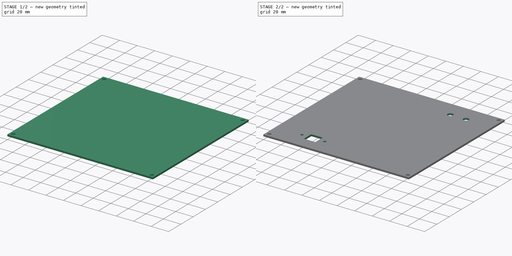
[diagram: build sequence overview — one tinted view per stage of 2, left to right]
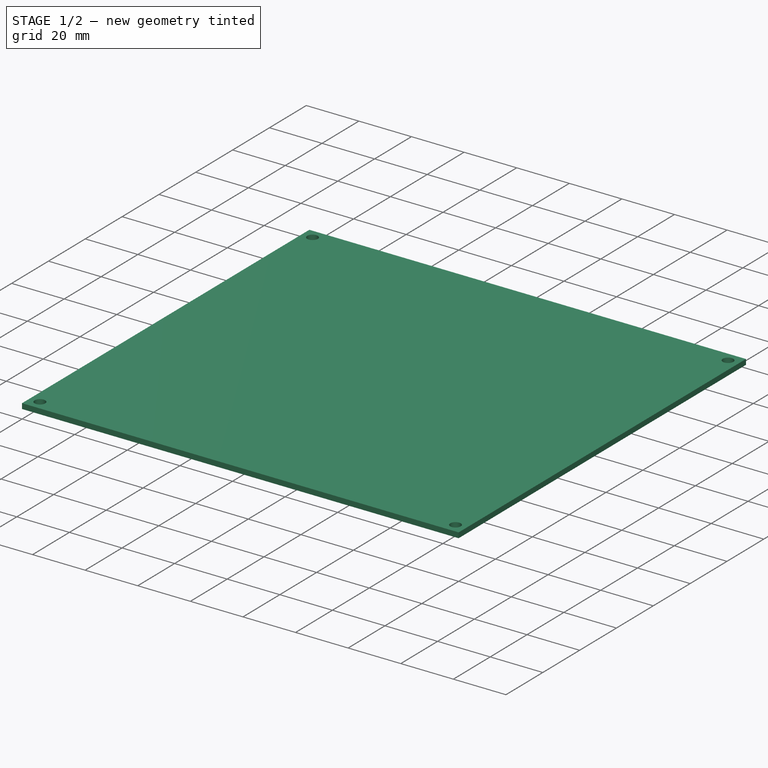
[diagram: stage 1 of 2 — iso view after this stage's code; geometry added in this stage tinted green]
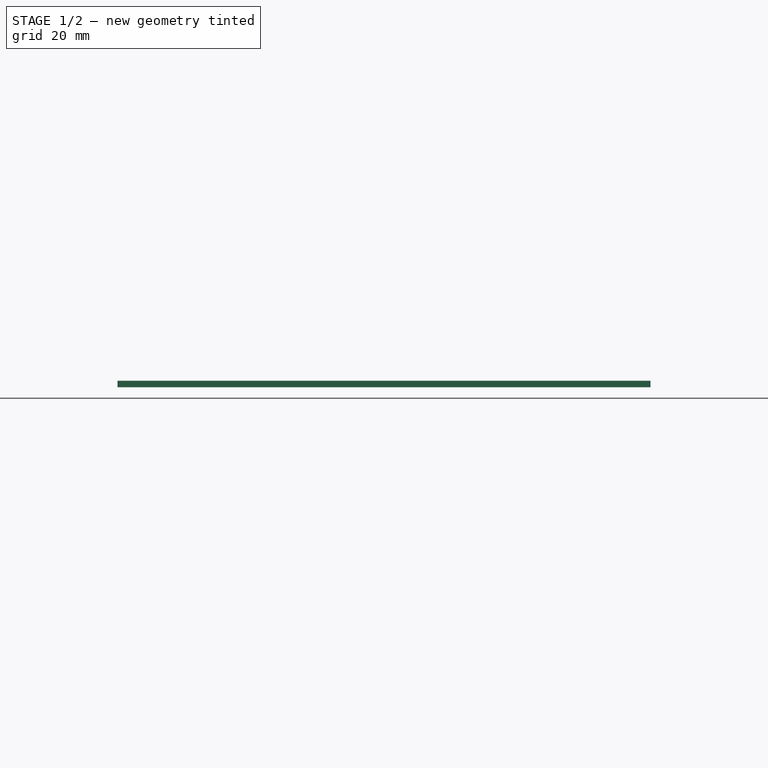
[diagram: stage 1 of 2 — front view after this stage's code; geometry added in this stage tinted green]
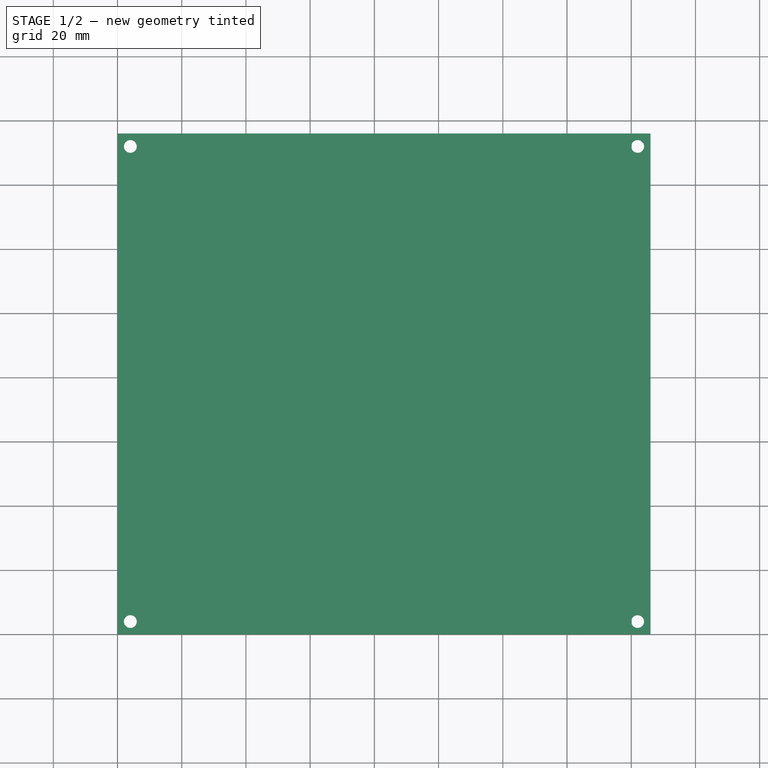
[diagram: stage 1 of 2 — top view after this stage's code; geometry added in this stage tinted green]
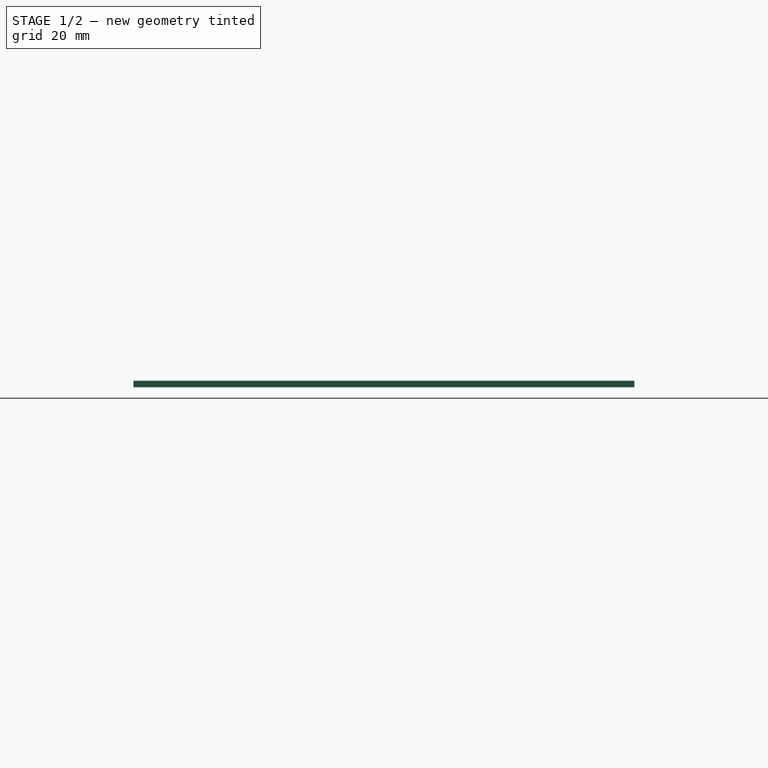
[diagram: stage 1 of 2 — right view after this stage's code; geometry added in this stage tinted green]
FCSTD DOCUMENT  (FreeCAD 0.19R24291 (Git))
Label: CaseBack
License: All rights reserved
LicenseURL: http://en.wikipedia.org/wiki/All_rights_reserved
objects: Sketcher::SketchObject×4, PartDesign::Pocket×3, PartDesign::Pad×1, PartDesign::Body×1, Spreadsheet::Sheet×1
note: 13 computed .brp shape members not serialized (recipe doc carries the construction recipe); baked Part::Feature solids carry a one-line shape summary decoded from their .brp

FEATURE [Sketcher::SketchObject] Sketch  label="Rect"
  FullyConstrained = true
  MapMode = 5
  Support = -> [XY_Plane]
  expr: Constraints[10] = <<params>>.backwidth
  expr: Constraints[9] = <<params>>.backheight
  sketch-geometry (4):
    g0: LineSegment StartX=0 StartY=0 StartZ=0 EndX=166 EndY=0 EndZ=0
    g1: LineSegment StartX=166 StartY=0 StartZ=0 EndX=166 EndY=156 EndZ=0
    g2: LineSegment StartX=166 StartY=156 StartZ=0 EndX=0 EndY=156 EndZ=0
    g3: LineSegment StartX=0 StartY=156 StartZ=0 EndX=0 EndY=0 EndZ=0
  constraints (11):
    c: Coincident(g0,g1)
    c: Coincident(g1,g2)
    c: Coincident(g2,g3)
    c: Coincident(g3,g0)
    c: Horizontal(g0)
    c: Horizontal(g2)
    c: Vertical(g1)
    c: Vertical(g3)
    c: Coincident(g0,g-1)
    c: DistanceY(g3,g3) = 156
    c: DistanceX(g0,g0) = 166
FEATURE [PartDesign::Pad] Pad  label="Base"
  AllowMultiFace = false
  Direction = (1,1,1)
  Length = 2
  Length2 = 100
  Profile = -> Sketch
  Type = 0
  expr: Length = <<params>>.basethickness
FEATURE [Sketcher::SketchObject] Sketch001
  ExternalGeometry = -> [Pad]
  FullyConstrained = true
  MapMode = 5
  Placement = pos=(0,0,2) rot=(0,0,1;0rad)
  Support = -> [Pad]
  expr: Constraints[14] = <<params>>.corneroffset
  expr: Constraints[17] = <<params>>.corneroffset
  expr: Constraints[3] = <<params>>.cornerradius
  expr: Constraints[16] = <<params>>.corneroffset
  expr: Constraints[15] = <<params>>.corneroffset
  sketch-geometry (7):
    g0: Circle CenterX=4 CenterY=152 CenterZ=0 NormalX=0 NormalY=0 NormalZ=1 AngleXU=0 Radius=2
    g1: Circle CenterX=162 CenterY=152 CenterZ=0 NormalX=0 NormalY=0 NormalZ=1 AngleXU=0 Radius=2
    g2: Circle CenterX=4 CenterY=4 CenterZ=0 NormalX=0 NormalY=0 NormalZ=1 AngleXU=0 Radius=2
    g3: Circle CenterX=162 CenterY=4 CenterZ=0 NormalX=0 NormalY=0 NormalZ=1 AngleXU=0 Radius=2
    g4: LineSegment StartX=4 StartY=152 StartZ=0 EndX=162 EndY=152 EndZ=0
    g5: LineSegment StartX=4 StartY=4 StartZ=0 EndX=162 EndY=4 EndZ=0
    g6: LineSegment StartX=4 StartY=4 StartZ=0 EndX=4 EndY=152 EndZ=0
  constraints (18):
    c: Equal(g0,g1)
    c: Equal(g1,g2)
    c: Equal(g2,g3)
    c: Radius(g0) = 2
    c: Coincident(g4,g0)
    c: Coincident(g4,g1)
    c: Horizontal(g4)
    c: Coincident(g5,g2)
    c: Coincident(g5,g3)
    c: Coincident(g6,g2)
    c: Coincident(g6,g0)
    c: Vertical(g6)
    c: Horizontal(g5)
    c: Equal(g4,g5)
    c: DistanceX(g-3,g0) = 4
    c: DistanceY(g0,g-3) = 4
    c: DistanceX(g1,g-4) = 4
    c: DistanceY(g-1,g2) = 4
FEATURE [PartDesign::Pocket] Pocket  label="CornerHoles"
  AllowMultiFace = false
  BaseFeature = -> Pad
  Length = 5
  Length2 = 100
  Profile = -> Sketch001
  Type = 1
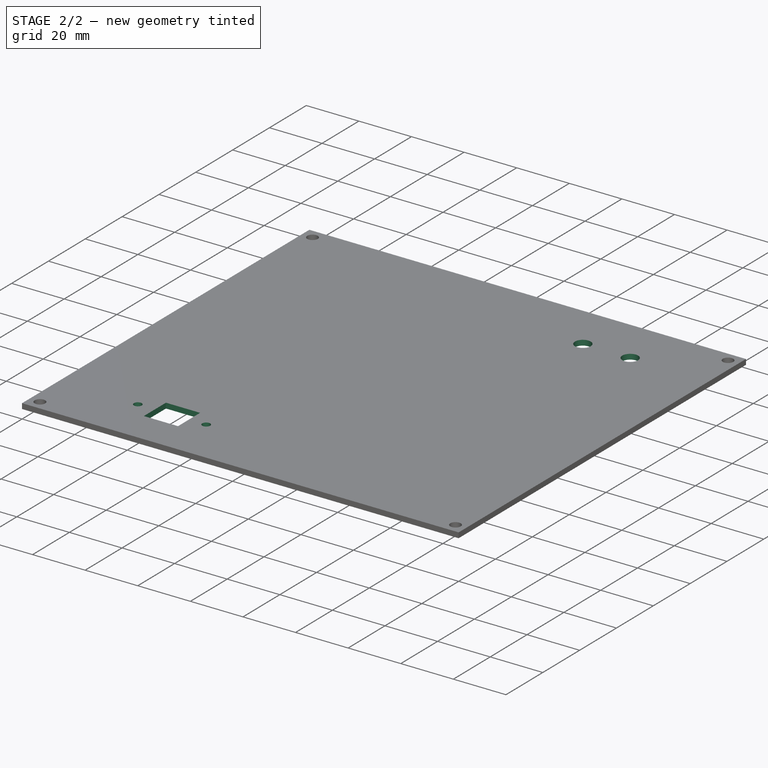
[diagram: stage 2 of 2 — iso view after this stage's code; geometry added in this stage tinted green]
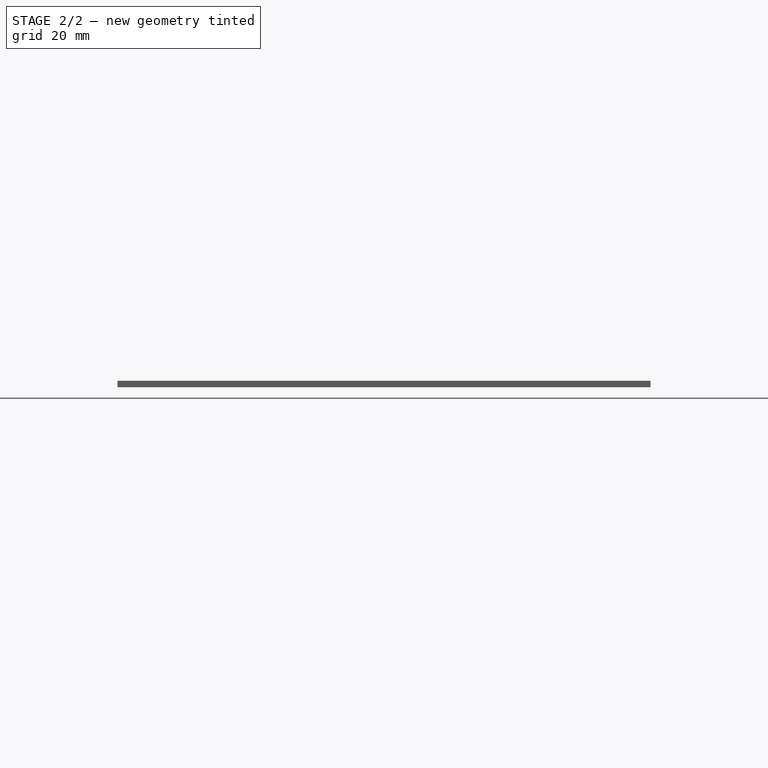
[diagram: stage 2 of 2 — front view after this stage's code; geometry added in this stage tinted green]
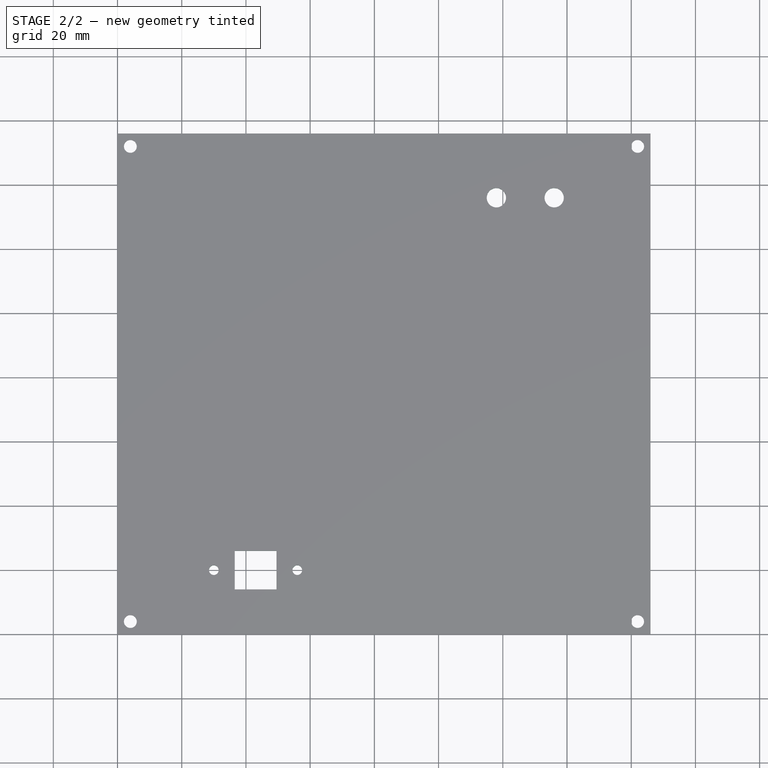
[diagram: stage 2 of 2 — top view after this stage's code; geometry added in this stage tinted green]
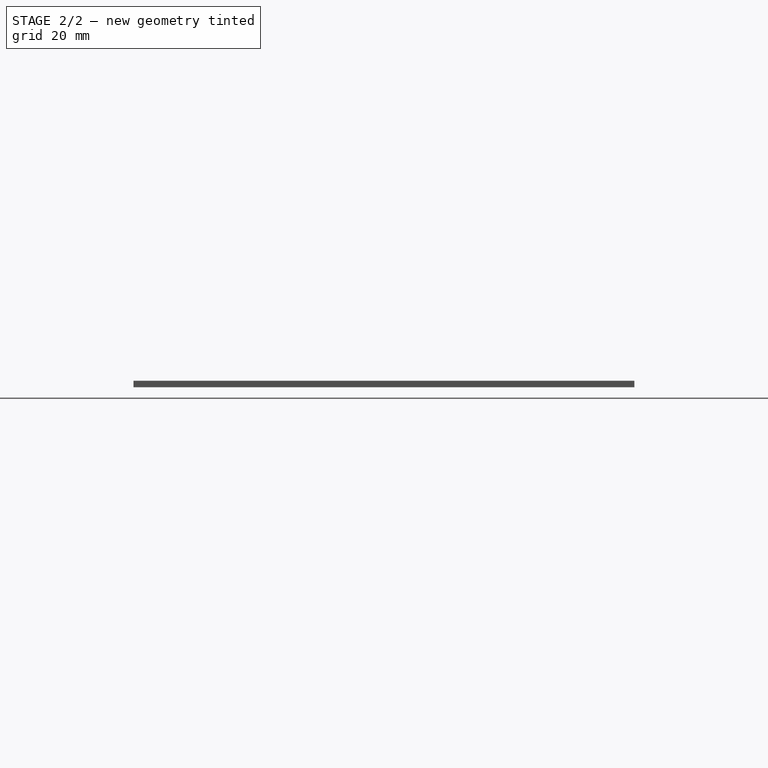
[diagram: stage 2 of 2 — right view after this stage's code; geometry added in this stage tinted green]
FEATURE [Sketcher::SketchObject] Sketch002
  ExternalGeometry = -> [Pocket]
  FullyConstrained = true
  MapMode = 5
  Placement = pos=(0,0,2) rot=(0,0,1;0rad)
  Support = -> [Pocket]
  expr: Constraints[7] = <<params>>.buttongap
  expr: Constraints[6] = Spreadsheet.buttonrightoff
  expr: Constraints[5] = Spreadsheet.buttontopoff
  expr: Constraints[1] = <<params>>.buttonradius
  sketch-geometry (3):
    g0: Circle CenterX=118 CenterY=136 CenterZ=0 NormalX=0 NormalY=0 NormalZ=1 AngleXU=0 Radius=3
    g1: Circle CenterX=136 CenterY=136 CenterZ=0 NormalX=0 NormalY=0 NormalZ=1 AngleXU=0 Radius=3
    g2: LineSegment StartX=118 StartY=136 StartZ=0 EndX=136 EndY=136 EndZ=0
  constraints (8):
    c: Equal(g1,g0)
    c: Radius(g0) = 3
    c: Coincident(g2,g0)
    c: Coincident(g2,g1)
    c: Horizontal(g2)
    c: DistanceY(g0,g-4) = 20
    c: DistanceX(g1,g-4) = 30
    c: DistanceX(g2,g2) = 18
FEATURE [PartDesign::Pocket] Pocket001  label="ButtonHoles"
  AllowMultiFace = false
  BaseFeature = -> Pocket
  Length = 5
  Length2 = 100
  Profile = -> Sketch002
  Type = 1
FEATURE [Sketcher::SketchObject] Sketch003
  FullyConstrained = true
  MapMode = 5
  Placement = pos=(0,0,2) rot=(0,0,1;0rad)
  Support = -> [Pocket001]
  expr: Constraints[21] = Spreadsheet.usbleftoff
  expr: Constraints[20] = <<params>>.usbgap
  expr: Constraints[19] = Spreadsheet.usbbottomoff
  expr: Constraints[11] = <<params>>.usbheight
  expr: Constraints[10] = <<params>>.usbwidth
  expr: Constraints[9] = <<params>>.usbradius
  sketch-geometry (8):
    g0: Circle CenterX=30 CenterY=20 CenterZ=0 NormalX=0 NormalY=0 NormalZ=1 AngleXU=0 Radius=1.5
    g1: Circle CenterX=56 CenterY=20 CenterZ=0 NormalX=0 NormalY=0 NormalZ=1 AngleXU=0 Radius=1.5
    g2: LineSegment StartX=36.5 StartY=26 StartZ=0 EndX=49.5 EndY=26 EndZ=0
    g3: LineSegment StartX=49.5 StartY=26 StartZ=0 EndX=49.5 EndY=14 EndZ=0
    g4: LineSegment StartX=49.5 StartY=14 StartZ=0 EndX=36.5 EndY=14 EndZ=0
    g5: LineSegment StartX=36.5 StartY=14 StartZ=0 EndX=36.5 EndY=26 EndZ=0
    g6: LineSegment StartX=30 StartY=20 StartZ=0 EndX=43 EndY=20 EndZ=0
    g7: LineSegment StartX=43 StartY=20 StartZ=0 EndX=56 EndY=20 EndZ=0
  constraints (22):
    c: Coincident(g2,g3)
    c: Coincident(g3,g4)
    c: Coincident(g4,g5)
    c: Coincident(g5,g2)
    c: Horizontal(g2)
    c: Horizontal(g4)
    c: Vertical(g3)
    c: Vertical(g5)
    c: Equal(g1,g0)
    c: Radius(g0) = 1.5
    c: DistanceX(g2,g2) = 13
    c: DistanceY(g3,g3) = 12
    c: Coincident(g6,g0)
    c: Horizontal(g6)
    c: Coincident(g7,g6)
    c: Coincident(g7,g1)
    c: Horizontal(g7)
    c: Equal(g7,g6)
    c: Symmetric(g4,g2,g6)
    c: DistanceY(g-1,g0) = 20
    c: DistanceX(g0,g1) = 26
    c: DistanceX(g-1,g0) = 30
FEATURE [PartDesign::Pocket] Pocket002  label="USB"
  AllowMultiFace = false
  BaseFeature = -> Pocket001
  Length = 5
  Length2 = 100
  Profile = -> Sketch003
  Type = 1
FEATURE [PartDesign::Body] Body  label="Back"
  Group = -> [Sketch,Pad,Sketch001,Pocket,Sketch002,Pocket001,Sketch003,Pocket002]
  Origin = -> Origin
  Tip = -> Pocket002
FEATURE [Spreadsheet::Sheet] Spreadsheet  label="params"
  cells = A1=backwidth; B1(backwidth)=166; A2=backheight; B2(backheight)=156; A3=basethickness; B3(basethickness)=2; A5=cornerradius; B5(cornerradius)=2; A6=corneroffset; B6(corneroffset)=4; A8=buttonradius; B8(buttonradius)=3; A9=buttongap; B9(buttongap)=18; A10=buttontopoff; B10(buttontopoff)=20; A11=buttonrightoff; B11(buttonrightoff)=30; A13=usbwidth; B13(usbwidth)=13; A14=usbheight; B14(usbheight)=12; A15=usbradius; B15(usbradius)=1.5; A16=usbgap; B16(usbgap)=26; A17=usbbottomoff; B17(usbbottomoff)=20; A18=usbleftoff; B18(usbleftoff)=30
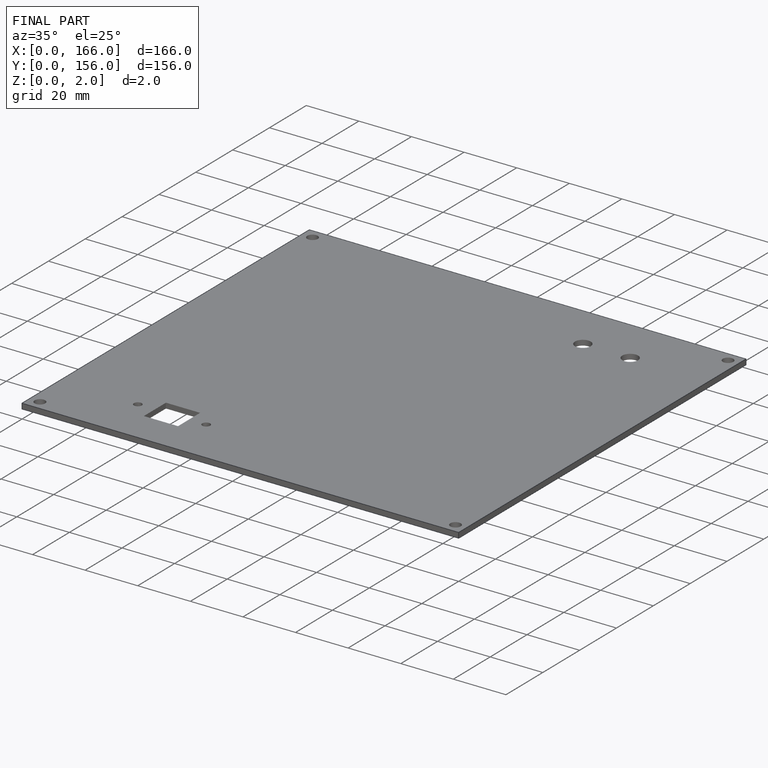
[diagram: finished part — iso view with bounding-box wireframe]
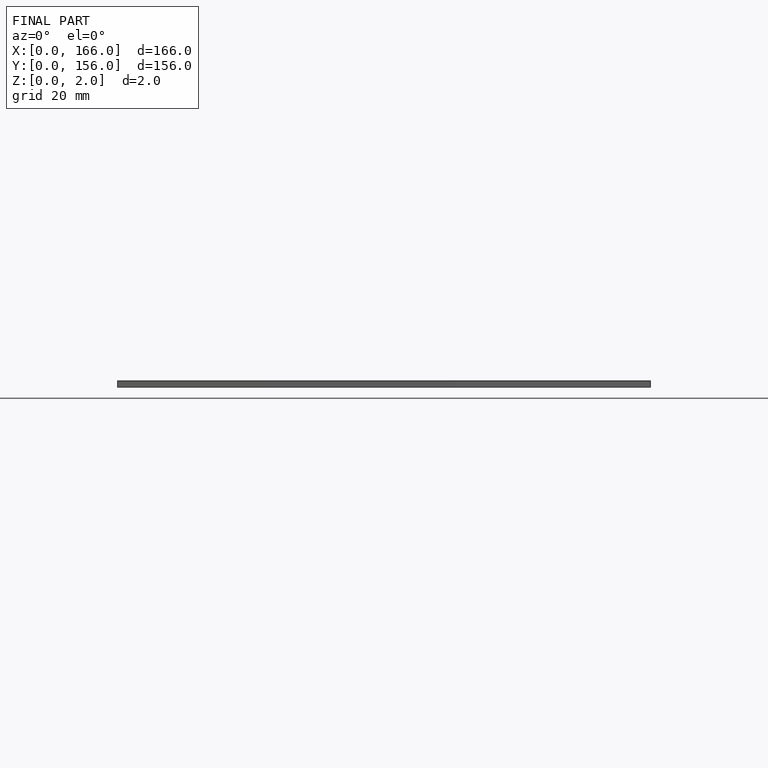
[diagram: finished part — front view with bounding-box wireframe]
